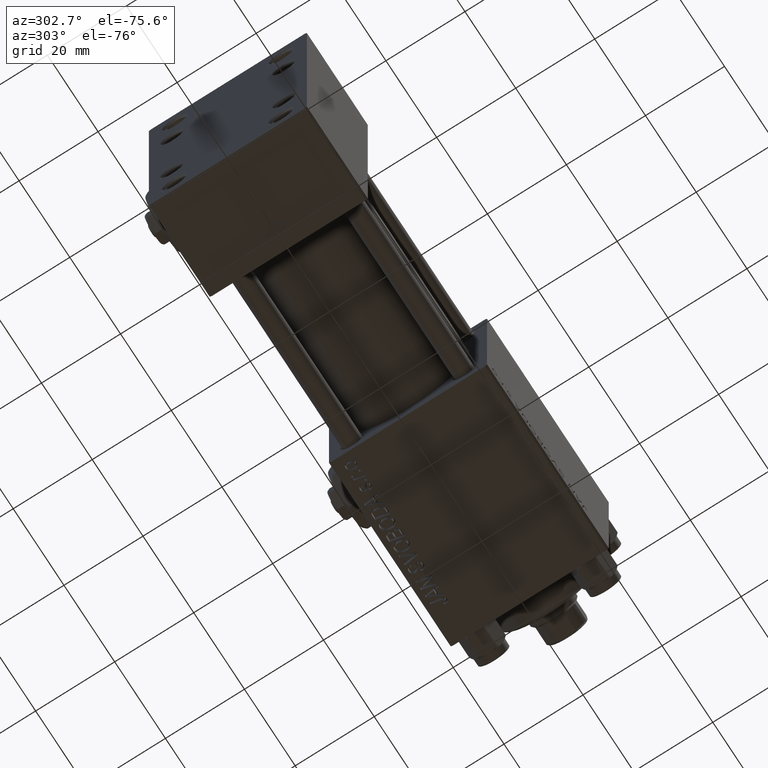
[diagram: clean part render]
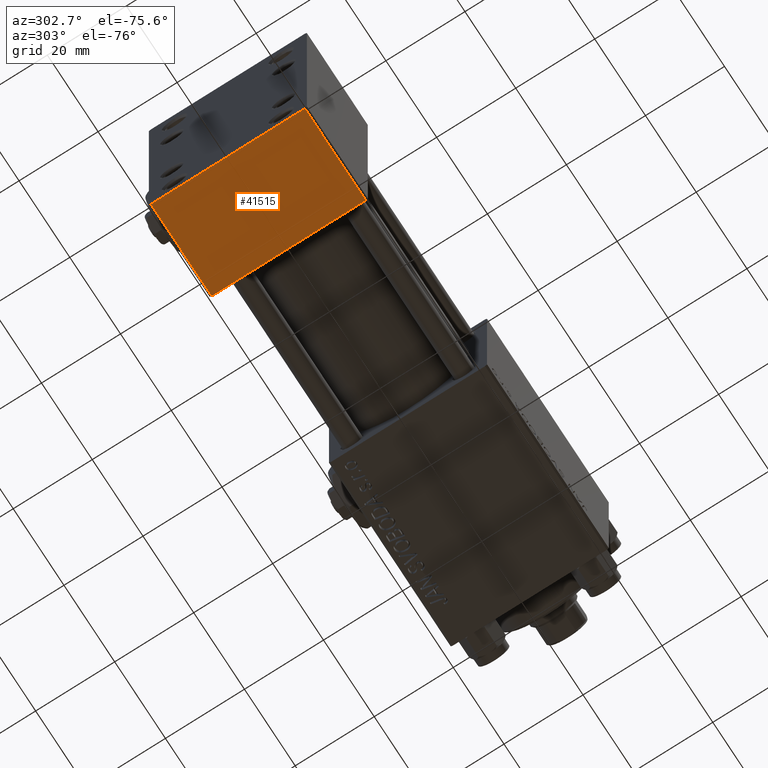
[diagram: same view with one face highlighted and labeled with its STEP entity id]
A machine part, auxiliary view. The second image highlights one B-rep face of the part: STEP entity #41515.
In plain terms, the highlighted planar face has unit normal (0, 0, -1).
Its self-contained STEP definition (entity closure, byte-faithful):
#63 = VERTEX_POINT ( 'NONE', #39011 ) ;
#3587 = FACE_OUTER_BOUND ( 'NONE', #30560, .T. ) ;
#3726 = ORIENTED_EDGE ( 'NONE', *, *, #20475, .T. ) ;
#6208 = VECTOR ( 'NONE', #44070, 1000.000000000000000 ) ;
#7084 = EDGE_CURVE ( 'NONE', #44657, #63, #50735, .T. ) ;
#7600 = CARTESIAN_POINT ( 'NONE',  ( 0.000000000000000000, 19.49999999999999645, -31.99999999999999289 ) ) ;
#8311 = DIRECTION ( 'NONE',  ( -1.000000000000000000, 0.000000000000000000, 0.000000000000000000 ) ) ;
#8973 = EDGE_CURVE ( 'NONE', #63, #14074, #40651, .T. ) ;
#10309 = ORIENTED_EDGE ( 'NONE', *, *, #31505, .F. ) ;
#14074 = VERTEX_POINT ( 'NONE', #49385 ) ;
#14763 = DIRECTION ( 'NONE',  ( 1.000000000000000000, 0.000000000000000000, 0.000000000000000000 ) ) ;
#19608 = PLANE ( 'NONE',  #36494 ) ;
#20475 = EDGE_CURVE ( 'NONE', #14074, #34758, #33233, .T. ) ;
#24204 = VECTOR ( 'NONE', #8311, 1000.000000000000000 ) ;
#24706 = CARTESIAN_POINT ( 'NONE',  ( 0.000000000000000000, -19.49999999999999645, -31.99999999999999289 ) ) ;
#27962 = DIRECTION ( 'NONE',  ( 0.000000000000000000, -1.000000000000000000, 0.000000000000000000 ) ) ;
#28045 = CARTESIAN_POINT ( 'NONE',  ( 24.00000000000000000, 19.99999999999999645, -31.99999999999999289 ) ) ;
#30560 = EDGE_LOOP ( 'NONE', ( #10309, #46939, #44189, #3726 ) ) ;
#31505 = EDGE_CURVE ( 'NONE', #44657, #34758, #31904, .T. ) ;
#31904 = LINE ( 'NONE', #47933, #48791 ) ;
#32152 = VECTOR ( 'NONE', #14763, 1000.000000000000000 ) ;
#33233 = LINE ( 'NONE', #44294, #24204 ) ;
#34758 = VERTEX_POINT ( 'NONE', #24706 ) ;
#36494 = AXIS2_PLACEMENT_3D ( 'NONE', #45054, #36667, #37169 ) ;
#36667 = DIRECTION ( 'NONE',  ( 0.000000000000000000, 0.000000000000000000, -1.000000000000000000 ) ) ;
#37169 = DIRECTION ( 'NONE',  ( -1.000000000000000000, 0.000000000000000000, -0.000000000000000000 ) ) ;
#39011 = CARTESIAN_POINT ( 'NONE',  ( 24.00000000000000000, 19.49999999999999645, -31.99999999999999289 ) ) ;
#40651 = LINE ( 'NONE', #28045, #6208 ) ;
#41515 = ADVANCED_FACE ( 'NONE', ( #3587 ), #19608, .T. ) ;
#44070 = DIRECTION ( 'NONE',  ( 0.000000000000000000, -1.000000000000000000, 0.000000000000000000 ) ) ;
#44189 = ORIENTED_EDGE ( 'NONE', *, *, #8973, .T. ) ;
#44294 = CARTESIAN_POINT ( 'NONE',  ( 0.000000000000000000, -19.49999999999999645, -31.99999999999999289 ) ) ;
#44657 = VERTEX_POINT ( 'NONE', #7600 ) ;
#45054 = CARTESIAN_POINT ( 'NONE',  ( 24.00000000000000000, 19.99999999999999645, -31.99999999999999289 ) ) ;
#46939 = ORIENTED_EDGE ( 'NONE', *, *, #7084, .T. ) ;
#47933 = CARTESIAN_POINT ( 'NONE',  ( 0.000000000000000000, 19.99999999999999645, -31.99999999999999289 ) ) ;
#48791 = VECTOR ( 'NONE', #27962, 1000.000000000000000 ) ;
#49385 = CARTESIAN_POINT ( 'NONE',  ( 24.00000000000000000, -19.49999999999999645, -31.99999999999999289 ) ) ;
#49493 = CARTESIAN_POINT ( 'NONE',  ( 24.00000000000000000, 19.49999999999999645, -31.99999999999999289 ) ) ;
#50735 = LINE ( 'NONE', #49493, #32152 ) ;